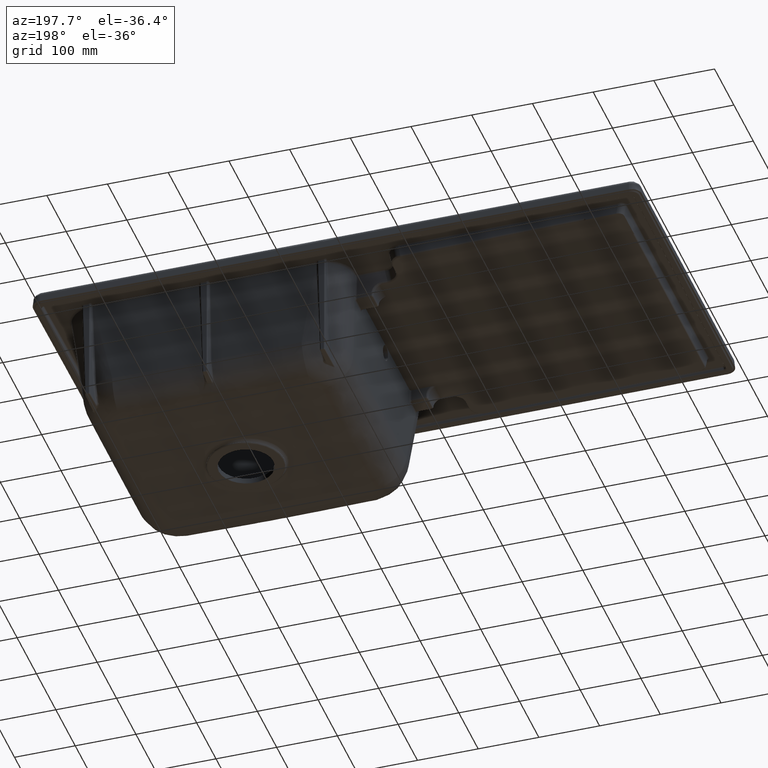
[diagram: clean part render]
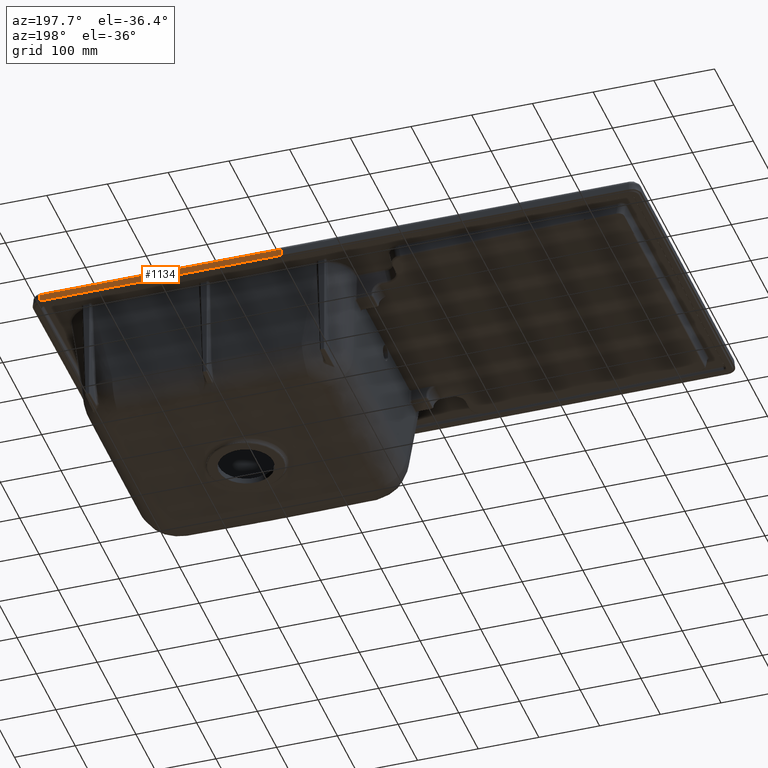
[diagram: same view with one face highlighted and labeled with its STEP entity id]
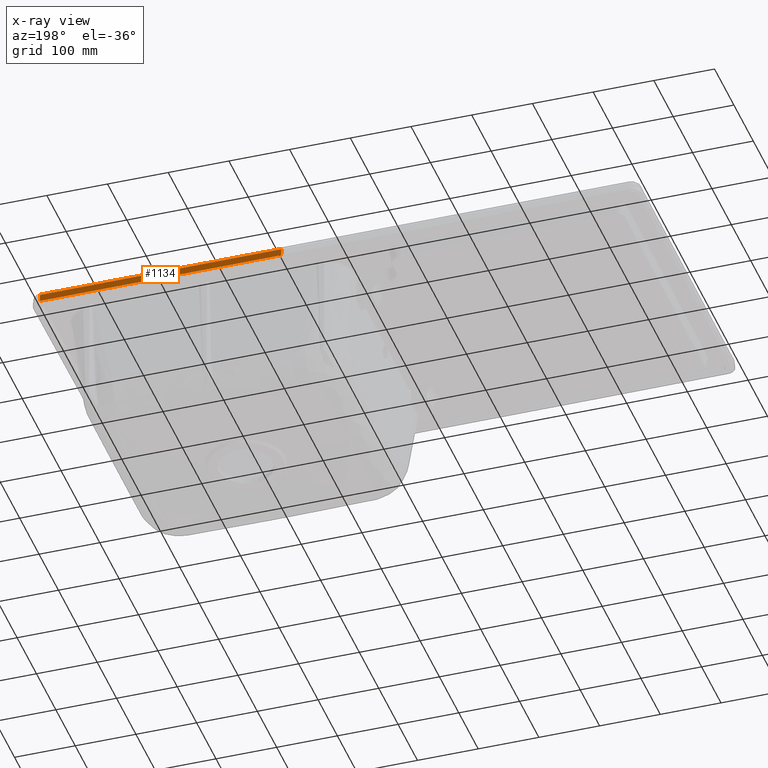
[diagram: x-ray of the same camera — body ghosted, the highlighted face saturated]
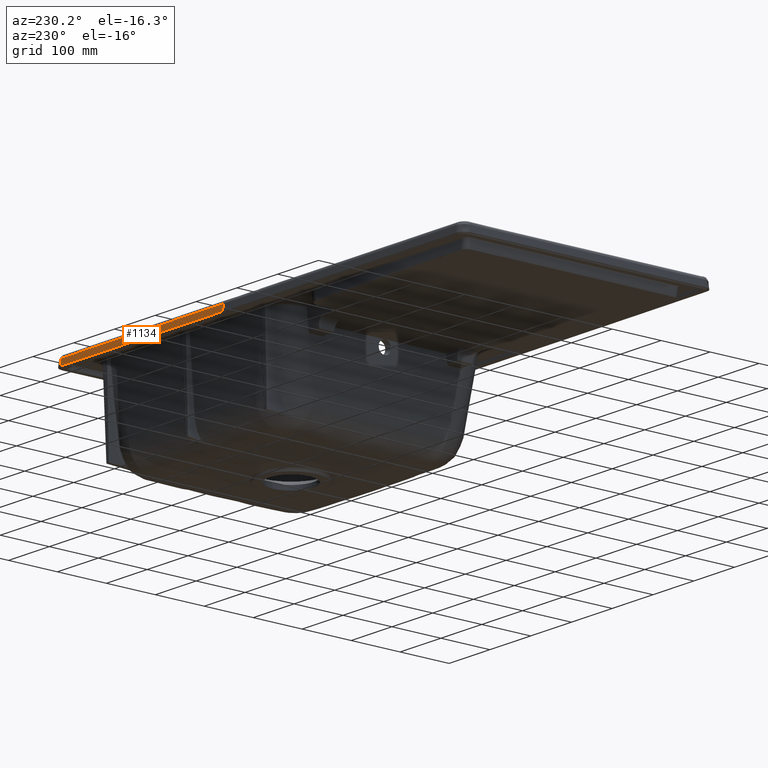
[diagram: same view with one face highlighted and labeled with its STEP entity id]
A machine part, auxiliary view. The second image highlights one B-rep face of the part: STEP entity #1134.
The next image is the same camera in x-ray: the body ghosted, the highlighted face saturated — about 0% of this face is hidden behind the body in this view.
A second angle (auxiliary view) of the same face is appended — the face is thin or edge-on in the first view.
In plain terms, the highlighted face is a freeform B-spline surface patch.
Its self-contained STEP definition (entity closure, byte-faithful):
#795=LINE('',#9758,#963);
#796=LINE('',#9765,#964);
#963=VECTOR('',#7235,1.);
#964=VECTOR('',#7236,1.);
#1134=ADVANCED_FACE('',(#1665),#1582,.F.);
#1582=B_SPLINE_SURFACE_WITH_KNOTS('',2,3,((#9771,#9772,#9773,#9774),(#9775,
#9776,#9777,#9778),(#9779,#9780,#9781,#9782)),.UNSPECIFIED.,.F.,.F.,.F.,
(3,3),(4,4),(0.,1.),(0.,1.),.UNSPECIFIED.);
#1665=FACE_OUTER_BOUND('',#2107,.T.);
#2107=EDGE_LOOP('',(#2630,#2631,#2632,#2633));
#2630=ORIENTED_EDGE('',*,*,#5279,.F.);
#2631=ORIENTED_EDGE('',*,*,#5280,.F.);
#2632=ORIENTED_EDGE('',*,*,#5281,.F.);
#2633=ORIENTED_EDGE('',*,*,#5282,.F.);
#4668=VERTEX_POINT('',#9490);
#4680=VERTEX_POINT('',#9759);
#4681=VERTEX_POINT('',#9764);
#4682=VERTEX_POINT('',#9766);
#5279=EDGE_CURVE('',#4680,#4668,#795,.T.);
#5280=EDGE_CURVE('',#4681,#4680,#6295,.T.);
#5281=EDGE_CURVE('',#4682,#4681,#796,.T.);
#5282=EDGE_CURVE('',#4668,#4682,#6296,.T.);
#6295=B_SPLINE_CURVE_WITH_KNOTS('',3,(#9760,#9761,#9762,#9763),
 .UNSPECIFIED.,.F.,.F.,(4,4),(0.,1.),.UNSPECIFIED.);
#6296=B_SPLINE_CURVE_WITH_KNOTS('',3,(#9767,#9768,#9769,#9770),
 .UNSPECIFIED.,.F.,.F.,(4,4),(0.,1.),.UNSPECIFIED.);
#7235=DIRECTION('',(-1.71859494497169E-14,-0.10452856128769,0.994521885065948));
#7236=DIRECTION('',(0.000575827378287417,0.104528542911448,-0.99452172029556));
#9490=CARTESIAN_POINT('',(485.,254.964310744438,-6.67153016449333));
#9758=CARTESIAN_POINT('',(485.,255.639571752345,-13.0962034042486));
#9759=CARTESIAN_POINT('',(485.,256.314832763058,-19.520876724705));
#9760=CARTESIAN_POINT('',(87.5227242190379,256.314798613772,-19.5182740870889));
#9761=CARTESIAN_POINT('',(220.007205084149,256.314832760251,-19.5208766440039));
#9762=CARTESIAN_POINT('',(352.503701466,256.314832760251,-19.5208766440039));
#9763=CARTESIAN_POINT('',(485.,256.314832760251,-19.5208766440039));
#9764=CARTESIAN_POINT('',(87.5227242190769,256.314798615175,-19.5182741544381));
#9765=CARTESIAN_POINT('',(87.5190043376967,255.63953760489,-13.093600773018));
#9766=CARTESIAN_POINT('',(87.5152844563473,254.964276739757,-6.66892744383848));
#9767=CARTESIAN_POINT('',(485.,254.964310744438,-6.67153016449334));
#9768=CARTESIAN_POINT('',(352.503701466,254.964310744438,-6.67153016449334));
#9769=CARTESIAN_POINT('',(220.007331466012,254.964310744438,-6.67153016449334));
#9770=CARTESIAN_POINT('',(87.5152844563554,254.964276596008,-6.66892745894713));
#9771=CARTESIAN_POINT('',(485.,256.314832760251,-19.5208766440039));
#9772=CARTESIAN_POINT('',(352.503701466,256.314832760251,-19.5208766440039));
#9773=CARTESIAN_POINT('',(220.007205084149,256.314832760251,-19.5208766440039));
#9774=CARTESIAN_POINT('',(87.5227242190379,256.314798613772,-19.5182740870889));
#9775=CARTESIAN_POINT('',(485.,255.639571752344,-13.0962034042487));
#9776=CARTESIAN_POINT('',(352.503701466,255.639571752344,-13.0962034042487));
#9777=CARTESIAN_POINT('',(220.00726827508,255.639571752344,-13.0962034042487));
#9778=CARTESIAN_POINT('',(87.5190043376967,255.63953760489,-13.093600773018));
#9779=CARTESIAN_POINT('',(485.,254.964310744438,-6.67153016449334));
#9780=CARTESIAN_POINT('',(352.503701466,254.964310744438,-6.67153016449334));
#9781=CARTESIAN_POINT('',(220.007331466012,254.964310744438,-6.67153016449334));
#9782=CARTESIAN_POINT('',(87.5152844563554,254.964276596008,-6.66892745894713));